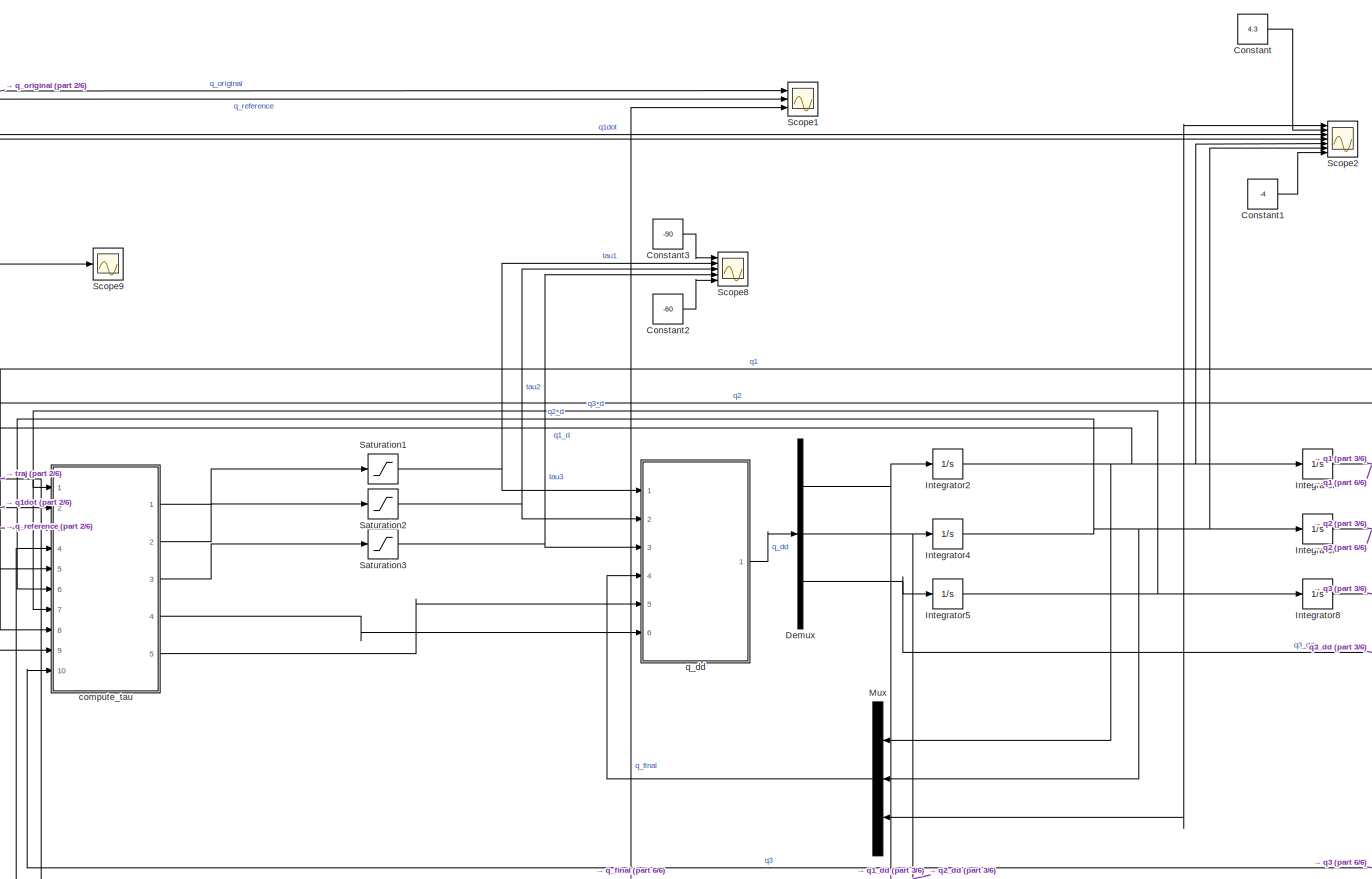
[diagram: root canvas - part 1/6, central region]
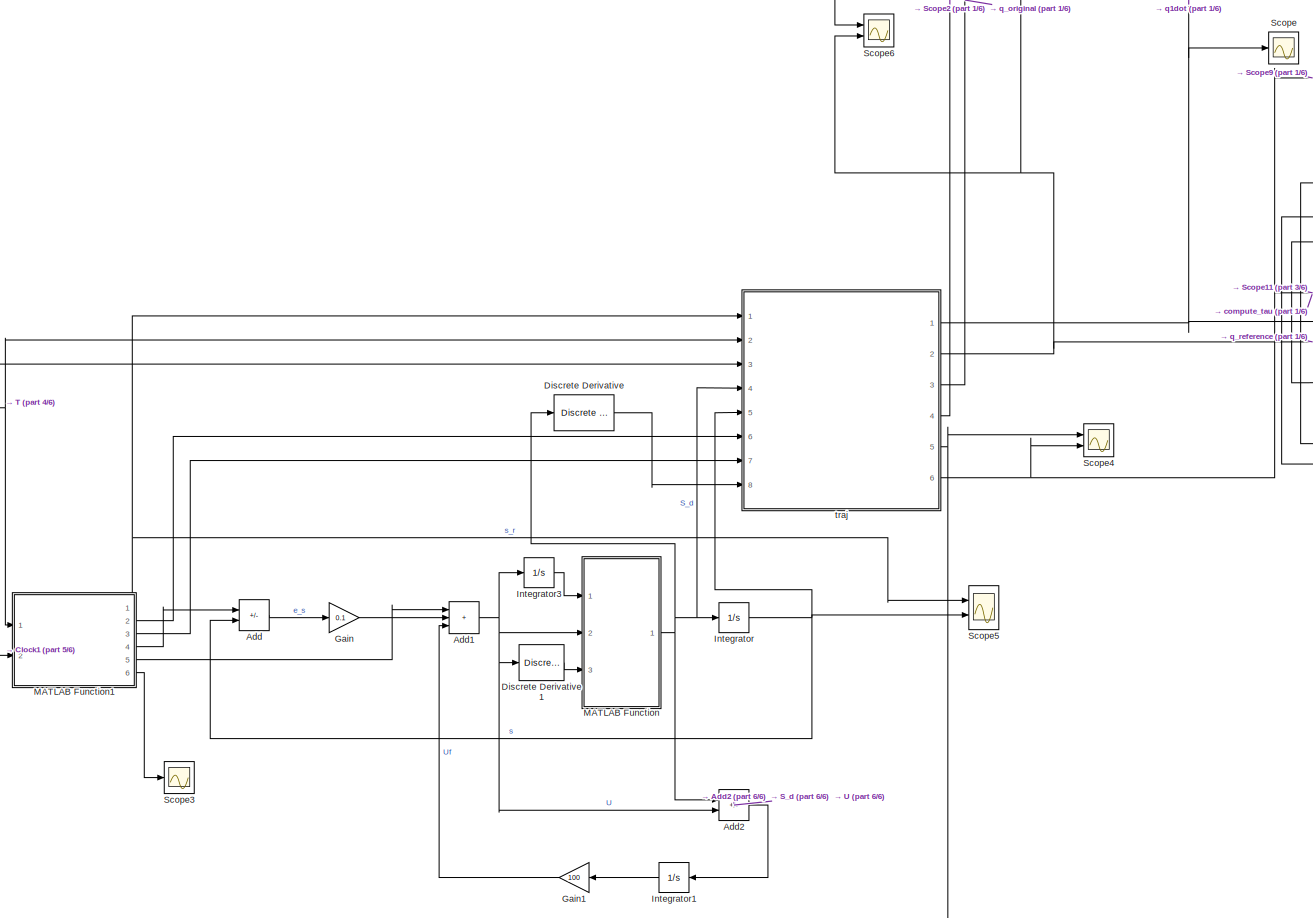
[diagram: root canvas - part 2/6, left side, full height]
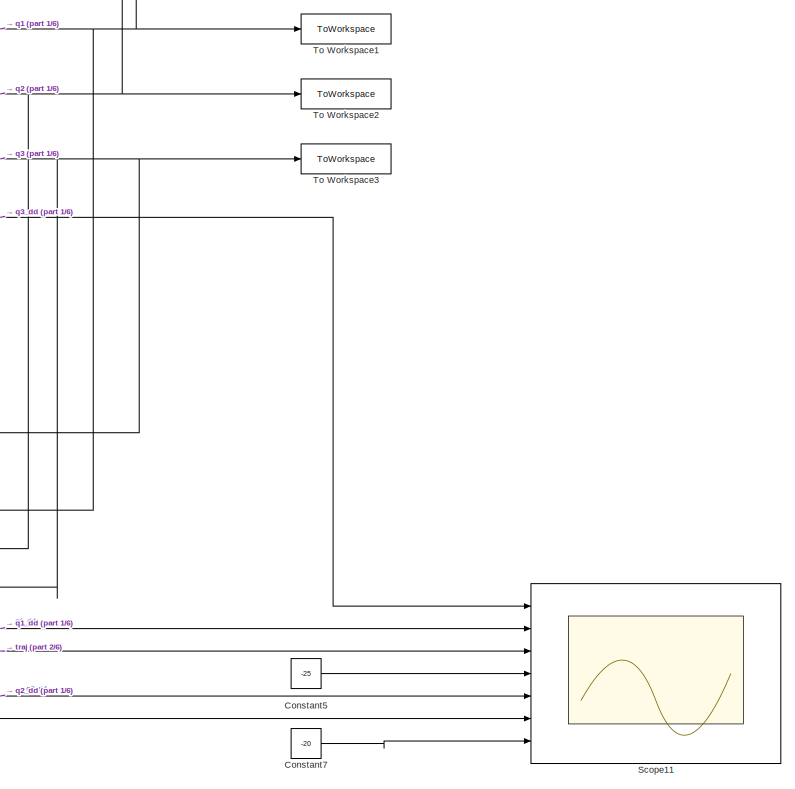
[diagram: root canvas - part 3/6, bottom right region]
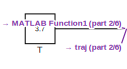
[diagram: root canvas - part 4/6, middle left region]
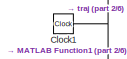
[diagram: root canvas - part 5/6, middle left region]
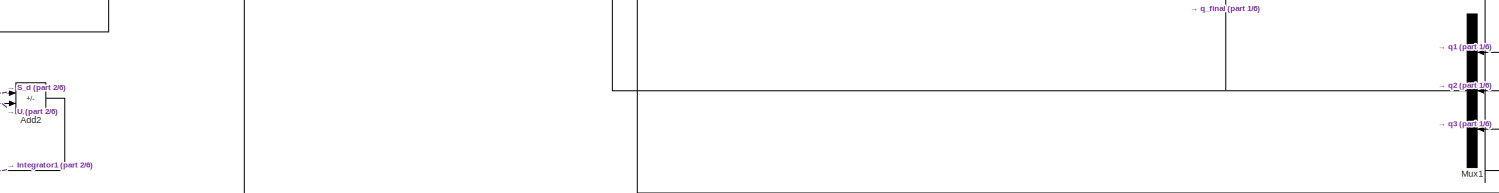
[diagram: root canvas - part 6/6, bottom center region]
MODEL slx_90f515494d0a
KIND model
CONFIG AbsTol = auto
CONFIG EnableMultiTasking = off
CONFIG FixedStep = auto
CONFIG MaxStep = auto
CONFIG MinStep = auto
CONFIG RelTol = 1e-5
CONFIG SampleTimeConstraint = Unconstrained
CONFIG SolverName = VariableStepAuto
CONFIG StartTime = 0.0
CONFIG StopTime = 3.7
BLOCK [Sum] Add
  IconShape = rectangular
  Inputs = +-
  Ports = [2, 1]
BLOCK [Sum] Add1
  IconShape = rectangular
  Inputs = +++
  Ports = [3, 1]
BLOCK [Sum] Add2
  IconShape = rectangular
  Inputs = +-
  Ports = [2, 1]
BLOCK [Clock] Clock1
BLOCK [Constant] Constant
  Value = 4.3
BLOCK [Constant] Constant1
  Value = -4
BLOCK [Constant] Constant2
  Value = -60
BLOCK [Constant] Constant3
  Value = -90
BLOCK [Constant] Constant5
  Value = -25
BLOCK [Constant] Constant7
  Value = -20
BLOCK [Demux] Demux
  Outputs = 3
  Ports = [1, 3]
BLOCK [Reference] Discrete Derivative  REF=simulink/Discrete/Discrete Derivative
  Ports = [1, 1]
  SourceBlock = simulink/Discrete/Discrete Derivative
  SourceProductBaseCode = SL
  SourceType = Discrete Derivative
BLOCK [Reference] Discrete Derivative1  REF=simulink/Discrete/Discrete Derivative
  Ports = [1, 1]
  SourceBlock = simulink/Discrete/Discrete Derivative
  SourceProductBaseCode = SL
  SourceType = Discrete Derivative
BLOCK [Gain] Gain
  Gain = 0.1
BLOCK [Gain] Gain1
  Gain = 100
BLOCK [Integrator] Integrator
  Ports = [1, 1]
BLOCK [Integrator] Integrator1
  Ports = [1, 1]
BLOCK [Integrator] Integrator2
  Ports = [1, 1]
BLOCK [Integrator] Integrator3
  Ports = [1, 1]
BLOCK [Integrator] Integrator4
  Ports = [1, 1]
BLOCK [Integrator] Integrator5
  Ports = [1, 1]
BLOCK [Integrator] Integrator6
  InitialCondition = 1.7610
  Ports = [1, 1]
BLOCK [Integrator] Integrator7
  InitialCondition = -1.9512
  Ports = [1, 1]
BLOCK [Integrator] Integrator8
  InitialCondition = 0.9756
  Ports = [1, 1]
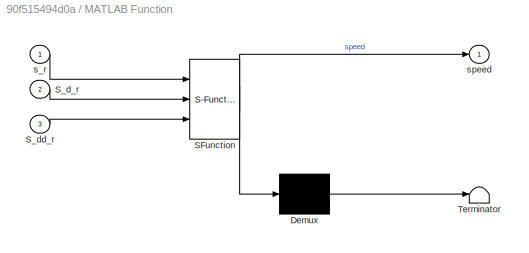
BLOCK [SubSystem] MATLAB Function
  ErrorFcn = Stateflow.Translate.translate
  PermitHierarchicalResolution = ExplicitOnly
  Ports = [3, 1]
  RequestExecContextInheritance = off
  SFBlockType = MATLAB Function
  TreatAsAtomicUnit = on
BLOCK [Demux] MATLAB Function/ Demux 
  Outputs = 1
  Ports = [1, 1]
BLOCK [S-Function] MATLAB Function/ SFunction 
  EnableBusSupport = on
  FunctionName = sf_sfun
  PortCounts = [3 2]
  Ports = [3, 2]
  SFcnIsStateOwnerBlock = off
  SFunctionDeploymentMode = off
  Tag = Stateflow S-Function 5
BLOCK [Terminator] MATLAB Function/ Terminator 
BLOCK [Inport] MATLAB Function/S_d_r
  Port = 2
BLOCK [Inport] MATLAB Function/S_dd_r
  Port = 3
BLOCK [Inport] MATLAB Function/s_r
BLOCK [Outport] MATLAB Function/speed
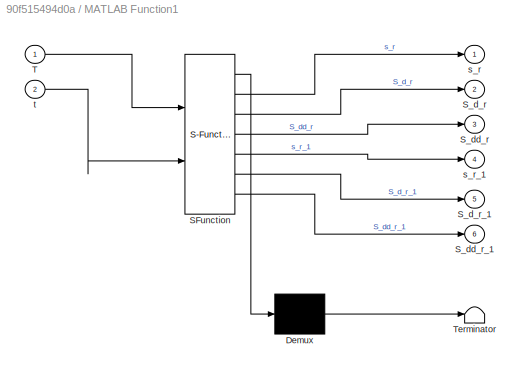
BLOCK [SubSystem] MATLAB Function1
  ErrorFcn = Stateflow.Translate.translate
  PermitHierarchicalResolution = ExplicitOnly
  Ports = [2, 6]
  RequestExecContextInheritance = off
  SFBlockType = MATLAB Function
  TreatAsAtomicUnit = on
BLOCK [Demux] MATLAB Function1/ Demux 
  Outputs = 1
  Ports = [1, 1]
BLOCK [S-Function] MATLAB Function1/ SFunction 
  EnableBusSupport = on
  FunctionName = sf_sfun
  PortCounts = [2 7]
  Ports = [2, 7]
  SFcnIsStateOwnerBlock = off
  SFunctionDeploymentMode = off
  Tag = Stateflow S-Function 3
BLOCK [Terminator] MATLAB Function1/ Terminator 
BLOCK [Outport] MATLAB Function1/S_d_r
  Port = 2
BLOCK [Outport] MATLAB Function1/S_d_r_1
  Port = 5
BLOCK [Outport] MATLAB Function1/S_dd_r
  Port = 3
BLOCK [Outport] MATLAB Function1/S_dd_r_1
  Port = 6
BLOCK [Inport] MATLAB Function1/T
BLOCK [Outport] MATLAB Function1/s_r
BLOCK [Outport] MATLAB Function1/s_r_1
  Port = 4
BLOCK [Inport] MATLAB Function1/t
  Port = 2
BLOCK [Mux] Mux
  DisplayOption = bar
  Inputs = 3
  NameLocation = top
  Ports = [3, 1]
BLOCK [Mux] Mux1
  DisplayOption = bar
  Inputs = 3
  NameLocation = top
  Ports = [3, 1]
BLOCK [Saturate] Saturation1
  LinearizeAsGain = off
  LowerLimit = -90
  UpperLimit = 90
  ZeroCross = off
BLOCK [Saturate] Saturation2
  LinearizeAsGain = off
  LowerLimit = -60
  UpperLimit = 60
  ZeroCross = off
BLOCK [Saturate] Saturation3
  LinearizeAsGain = off
  LowerLimit = -15
  UpperLimit = 15
  ZeroCross = off
BLOCK [Scope] Scope
  Floating = off
  NumInputPorts = 1
  Ports = [1]
  ScopeSpecificationString = Simulink.scopes.TimeScopeBlockCfg('CurrentConfiguration', extmgr.ConfigurationSet(extmgr.Configuration('Core','General UI',true),extmgr.Configuration('Core','Source UI',true),extmgr.Configuration('Sources','WiredSimulink',true,'DataLoggingVariableName','ScopeData1'),extmgr.Configuration('Visuals','Time Domain',true,'SerializedDisplays',{struct('MinYLimReal','-5.03718','MaxYLimReal','5.32977','YLab...<+1415ch>
BLOCK [Scope] Scope1
  Floating = off
  NumInputPorts = 3
  Ports = [3]
  ScopeSpecificationString = Simulink.scopes.TimeScopeBlockCfg('CurrentConfiguration', extmgr.ConfigurationSet(extmgr.Configuration('Core','General UI',true,'FigureColor',[1 1 1]),extmgr.Configuration('Core','Source UI',true),extmgr.Configuration('Sources','WiredSimulink',true,'DataLoggingVariableName','ScopeData2'),extmgr.Configuration('Visuals','Time Domain',true,'SerializedDisplays',{struct('MinYLimReal','-3.54984','MaxYLi...<+2529ch>
BLOCK [Scope] Scope11
  Floating = off
  NumInputPorts = 7
  Ports = [7]
  ScopeSpecificationString = Simulink.scopes.TimeScopeBlockCfg('CurrentConfiguration', extmgr.ConfigurationSet(extmgr.Configuration('Core','General UI',true,'FigureColor',[1 1 1]),extmgr.Configuration('Core','Source UI',true),extmgr.Configuration('Sources','WiredSimulink',true,'DataLoggingVariableName','ScopeData2'),extmgr.Configuration('Visuals','Time Domain',true,'SerializedDisplays',{struct('MinYLimReal','-30.27035','MaxYL...<+3435ch>
BLOCK [Scope] Scope2
  Floating = off
  NumInputPorts = 7
  Ports = [7]
  ScopeSpecificationString = Simulink.scopes.TimeScopeBlockCfg('CurrentConfiguration', extmgr.ConfigurationSet(extmgr.Configuration('Core','General UI',true,'FigureColor',[1 1 1]),extmgr.Configuration('Core','Source UI',true),extmgr.Configuration('Sources','WiredSimulink',true,'DataLoggingVariableName','ScopeData3'),extmgr.Configuration('Visuals','Time Domain',true,'SerializedDisplays',{struct('MinYLimReal','-4.47931','MaxYLi...<+2866ch>
BLOCK [Scope] Scope3
  Floating = off
  NumInputPorts = 1
  Ports = [1]
  ScopeSpecificationString = Simulink.scopes.TimeScopeBlockCfg('CurrentConfiguration', extmgr.ConfigurationSet(extmgr.Configuration('Core','General UI',true),extmgr.Configuration('Core','Source UI',true),extmgr.Configuration('Sources','WiredSimulink',true,'DataLoggingVariableName','ScopeData1'),extmgr.Configuration('Visuals','Time Domain',true),extmgr.Configuration('Tools','Plot Navigation',true),extmgr.Configuration('Tools',...<+40ch>
BLOCK [Scope] Scope4
  Floating = off
  NumInputPorts = 2
  Ports = [2]
  ScopeSpecificationString = Simulink.scopes.TimeScopeBlockCfg('CurrentConfiguration', extmgr.ConfigurationSet(extmgr.Configuration('Core','General UI',true),extmgr.Configuration('Core','Source UI',true),extmgr.Configuration('Sources','WiredSimulink',true,'DataLoggingVariableName','ScopeData1'),extmgr.Configuration('Visuals','Time Domain',true,'SerializedDisplays',{struct('MinYLimReal','-29.61261','MaxYLimReal','22.36008','YL...<+1583ch>
BLOCK [Scope] Scope5
  Floating = off
  NumInputPorts = 2
  Ports = [2]
  ScopeSpecificationString = Simulink.scopes.TimeScopeBlockCfg('CurrentConfiguration', extmgr.ConfigurationSet(extmgr.Configuration('Core','General UI',true),extmgr.Configuration('Core','Source UI',true),extmgr.Configuration('Sources','WiredSimulink',true,'DataLoggingVariableName','ScopeData6'),extmgr.Configuration('Visuals','Time Domain',true,'SerializedDisplays',{struct('MinYLimReal','-0.12502','MaxYLimReal','1.12522','YLab...<+1442ch>
BLOCK [Scope] Scope6
  Floating = off
  NumInputPorts = 2
  Ports = [2]
  ScopeSpecificationString = Simulink.scopes.TimeScopeBlockCfg('CurrentConfiguration', extmgr.ConfigurationSet(extmgr.Configuration('Core','General UI',true),extmgr.Configuration('Core','Source UI',true),extmgr.Configuration('Sources','WiredSimulink',true,'DataLoggingVariableName','ScopeData7'),extmgr.Configuration('Visuals','Time Domain',true,'SerializedDisplays',{struct('MinYLimReal','-3.53234','MaxYLimReal','3.8452','YLabe...<+1613ch>
BLOCK [Scope] Scope8
  Floating = off
  NumInputPorts = 5
  Ports = [5]
  ScopeSpecificationString = Simulink.scopes.TimeScopeBlockCfg('CurrentConfiguration', extmgr.ConfigurationSet(extmgr.Configuration('Core','General UI',true,'FigureColor',[1 1 1]),extmgr.Configuration('Core','Source UI',true),extmgr.Configuration('Sources','WiredSimulink',true,'DataLoggingVariableName','ScopeData9'),extmgr.Configuration('Visuals','Time Domain',true,'SerializedDisplays',{struct('MinYLimReal','-109.99896','MaxY...<+1818ch>
BLOCK [Scope] Scope9
  Floating = off
  NumInputPorts = 1
  Ports = [1]
  ScopeSpecificationString = Simulink.scopes.TimeScopeBlockCfg('CurrentConfiguration', extmgr.ConfigurationSet(extmgr.Configuration('Core','General UI',true),extmgr.Configuration('Core','Source UI',true),extmgr.Configuration('Sources','WiredSimulink',true),extmgr.Configuration('Visuals','Time Domain',true,'SerializedDisplays',{struct('MinYLimReal','-24.95066','MaxYLimReal','18.4343','YLabelReal','','MinYLimMag','0.00000','Max...<+1437ch>
BLOCK [Constant] T
  Value = 3.7
BLOCK [ToWorkspace] To Workspace1
  FixptAsFi = on
  MaxDataPoints = inf
  Ports = [1]
  SampleTime = -1
  VariableName = q1
BLOCK [ToWorkspace] To Workspace2
  FixptAsFi = on
  MaxDataPoints = inf
  Ports = [1]
  SampleTime = -1
  VariableName = q2
BLOCK [ToWorkspace] To Workspace3
  FixptAsFi = on
  MaxDataPoints = inf
  Ports = [1]
  SampleTime = -1
  VariableName = q3
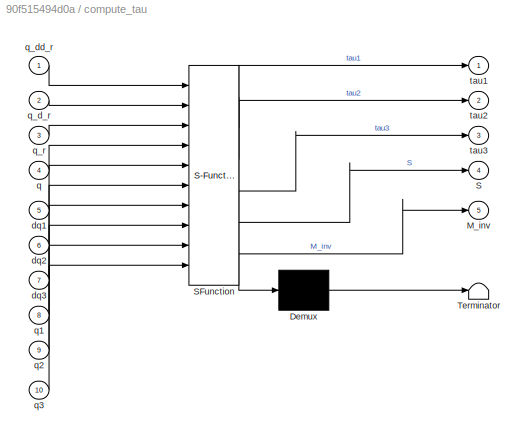
BLOCK [SubSystem] compute_tau
  ErrorFcn = Stateflow.Translate.translate
  PermitHierarchicalResolution = ExplicitOnly
  Ports = [10, 5]
  RequestExecContextInheritance = off
  SFBlockType = MATLAB Function
  TreatAsAtomicUnit = on
BLOCK [Demux] compute_tau/ Demux 
  Outputs = 1
  Ports = [1, 1]
BLOCK [S-Function] compute_tau/ SFunction 
  EnableBusSupport = on
  FunctionName = sf_sfun
  PortCounts = [10 6]
  Ports = [10, 6]
  SFcnIsStateOwnerBlock = off
  SFunctionDeploymentMode = off
  Tag = Stateflow S-Function 2
BLOCK [Terminator] compute_tau/ Terminator 
BLOCK [Outport] compute_tau/M_inv
  Port = 5
BLOCK [Outport] compute_tau/S
  Port = 4
BLOCK [Inport] compute_tau/dq1
  Port = 5
BLOCK [Inport] compute_tau/dq2
  Port = 6
BLOCK [Inport] compute_tau/dq3
  Port = 7
BLOCK [Inport] compute_tau/q
  Port = 4
BLOCK [Inport] compute_tau/q1
  Port = 8
BLOCK [Inport] compute_tau/q2
  Port = 9
BLOCK [Inport] compute_tau/q3
  Port = 10
BLOCK [Inport] compute_tau/q_d_r
  Port = 2
BLOCK [Inport] compute_tau/q_dd_r
BLOCK [Inport] compute_tau/q_r
  Port = 3
BLOCK [Outport] compute_tau/tau1
BLOCK [Outport] compute_tau/tau2
  Port = 2
BLOCK [Outport] compute_tau/tau3
  Port = 3
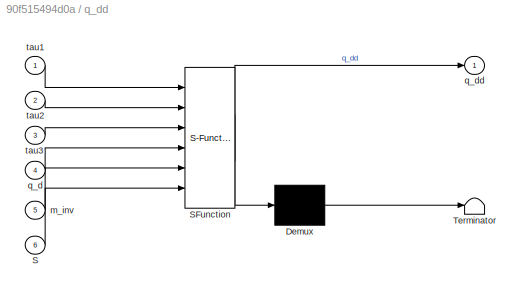
BLOCK [SubSystem] q_dd
  ErrorFcn = Stateflow.Translate.translate
  PermitHierarchicalResolution = ExplicitOnly
  Ports = [6, 1]
  RequestExecContextInheritance = off
  SFBlockType = MATLAB Function
  TreatAsAtomicUnit = on
BLOCK [Demux] q_dd/ Demux 
  Outputs = 1
  Ports = [1, 1]
BLOCK [S-Function] q_dd/ SFunction 
  EnableBusSupport = on
  FunctionName = sf_sfun
  PortCounts = [6 2]
  Ports = [6, 2]
  SFcnIsStateOwnerBlock = off
  SFunctionDeploymentMode = off
  Tag = Stateflow S-Function 1
BLOCK [Terminator] q_dd/ Terminator 
BLOCK [Inport] q_dd/S
  Port = 6
BLOCK [Inport] q_dd/m_inv
  Port = 5
BLOCK [Inport] q_dd/q_d
  Port = 4
BLOCK [Outport] q_dd/q_dd
BLOCK [Inport] q_dd/tau1
BLOCK [Inport] q_dd/tau2
  Port = 2
BLOCK [Inport] q_dd/tau3
  Port = 3
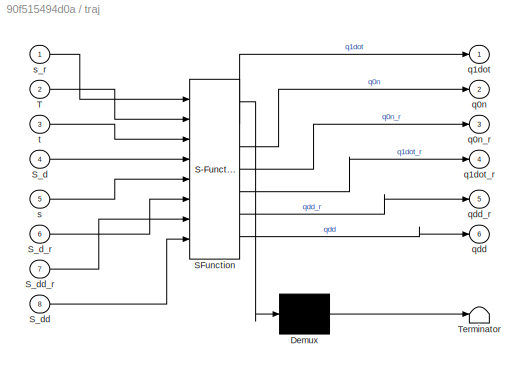
BLOCK [SubSystem] traj
  ErrorFcn = Stateflow.Translate.translate
  PermitHierarchicalResolution = ExplicitOnly
  Ports = [8, 6]
  RequestExecContextInheritance = off
  SFBlockType = MATLAB Function
  TreatAsAtomicUnit = on
BLOCK [Demux] traj/ Demux 
  Outputs = 1
  Ports = [1, 1]
BLOCK [S-Function] traj/ SFunction 
  EnableBusSupport = on
  FunctionName = sf_sfun
  PortCounts = [8 7]
  Ports = [8, 7]
  SFcnIsStateOwnerBlock = off
  SFunctionDeploymentMode = off
  Tag = Stateflow S-Function 4
BLOCK [Terminator] traj/ Terminator 
BLOCK [Inport] traj/S_d
  Port = 4
BLOCK [Inport] traj/S_d_r
  Port = 6
BLOCK [Inport] traj/S_dd
  Port = 8
BLOCK [Inport] traj/S_dd_r
  Port = 7
BLOCK [Inport] traj/T
  Port = 2
BLOCK [Outport] traj/q0n
  Port = 2
BLOCK [Outport] traj/q0n_r
  Port = 3
BLOCK [Outport] traj/q1dot
BLOCK [Outport] traj/q1dot_r
  Port = 4
BLOCK [Outport] traj/qdd
  Port = 6
BLOCK [Outport] traj/qdd_r
  Port = 5
BLOCK [Inport] traj/s
  Port = 5
BLOCK [Inport] traj/s_r
BLOCK [Inport] traj/t
  Port = 3
NET Add1:1 -> Add2:2, Discrete Derivative1:1, Integrator3:1, MATLAB Function:2
LINE Add2:1 -> Integrator1:1
LINE Add:1 -> Gain:1
NET Clock1:1 -> MATLAB Function1:2, traj:3
LINE Constant1:1 -> Scope2:7
LINE Constant2:1 -> Scope8:5
LINE Constant3:1 -> Scope8:1
LINE Constant5:1 -> Scope11:4
LINE Constant7:1 -> Scope11:7
LINE Constant:1 -> Scope2:2
NET Demux:1 -> Integrator2:1, Scope11:2
NET Demux:2 -> Integrator4:1, Scope11:5
NET Demux:3 -> Integrator5:1, Scope11:1
LINE Discrete Derivative1:1 -> MATLAB Function:3
LINE Discrete Derivative:1 -> traj:8
LINE Gain1:1 -> Add1:3
LINE Gain:1 -> Add1:2
LINE Integrator1:1 -> Gain1:1
NET Integrator2:1 -> Integrator6:1, Mux:1, Scope2:5, compute_tau:5
LINE Integrator3:1 -> MATLAB Function:1
NET Integrator4:1 -> Integrator7:1, Mux:2, Scope2:6, compute_tau:6
NET Integrator5:1 -> Integrator8:1, Mux:3, Scope2:1, compute_tau:7
NET Integrator6:1 -> Mux1:1, To Workspace1:1, compute_tau:8
NET Integrator7:1 -> Mux1:2, To Workspace2:1, compute_tau:9
NET Integrator8:1 -> Mux1:3, To Workspace3:1, compute_tau:10
NET Integrator:1 -> Add:2, Scope5:2, traj:5
NET MATLAB Function1:1 -> Scope5:1, traj:1
LINE MATLAB Function1:2 -> traj:6
LINE MATLAB Function1:3 -> traj:7
LINE MATLAB Function1:4 -> Add:1
LINE MATLAB Function1:5 -> Add1:1
LINE MATLAB Function1:6 -> Scope3:1
NET MATLAB Function:1 -> Add2:1, Discrete Derivative:1, Integrator:1, traj:4
NET Mux1:1 -> Scope1:3, compute_tau:4
LINE Mux:1 -> q_dd:4
NET Saturation1:1 -> Scope8:2, q_dd:1
NET Saturation2:1 -> Scope8:3, q_dd:2
NET Saturation3:1 -> Scope8:4, q_dd:3
NET T:1 -> MATLAB Function1:1, traj:2
LINE compute_tau:1 -> Saturation1:1
LINE compute_tau:2 -> Saturation2:1
LINE compute_tau:3 -> Saturation3:1
LINE compute_tau:4 -> q_dd:6
LINE compute_tau:5 -> q_dd:5
LINE q_dd:1 -> Demux:1
NET traj:1 -> Scope2:3, Scope:1, compute_tau:2
NET traj:2 -> Scope1:2, Scope6:2, compute_tau:3
NET traj:3 -> Scope1:1, Scope6:1
LINE traj:4 -> Scope2:4
NET traj:5 -> Scope11:6, Scope4:1
NET traj:6 -> Scope11:3, Scope4:2, Scope9:1, compute_tau:1
note: NET lines group one-source signal fan-out (src -> all destinations, sorted); 1:1 wires keep LINE
CHART q_dd states=1 transitions=1
  STATE_LABEL 'eML_blk_kernel()'
  STATE_LABEL 'SCRIPT:\nfunction q_dd = compute_q_dd(tau1,tau2,tau3,q_d,m_inv,S)\n\ntau = [tau1;\n       tau2;\n       tau3];\nq_dd = m_inv*(tau - (S*q_d));\n\n'
CHART compute_tau states=1 transitions=1
  STATE_LABEL 'eML_blk_kernel()'
  STATE_LABEL 'SCRIPT:\nfunction [tau1,tau2,tau3,S,M_inv] = compute_tau(q_dd_r, q_d_r, q_r, q,dq1,dq2,dq3,q1,q2,q3)\n\n% M(q)q_dd_r + S(q,q_d)q_d_r + Kp(q_r - q) + Kd (q_d_r - q_d)\n\n% \n% Kp = diag([70,70,70]);\n% \n% Kd= diag([300,300,300]);\n% \n%NEW GAIN TO STABILIZE ACCELERATION\nKp = diag([0.1,0.1,0.1]);\n\nKd = diag([10,10,10]);\n\n%%q\n\n% q1=q_r(1);\n% q2=q_r(2);\n% q3=q_r(3);\n% %%dq\n% dq1=q_d_r(1);\n% dq2=q_d_r(2);\n% dq3...<+1949ch>'
CHART MATLAB Function1 states=1 transitions=1
  STATE_LABEL 'eML_blk_kernel()'
  STATE_LABEL 'SCRIPT:\nfunction [s_r, S_d_r, S_dd_r,s_r_1, S_d_r_1, S_dd_r_1] = timing_law(T, t)\n\ntau_t=t/T;\n%s_r = -2*tau_t^3 + 3*tau_t^2;\ns_r = 10*tau_t^3 - 15*tau_t^4 + 6*tau_t^5;\nS_d_r = (30*t^2)/T^3 - (60*t^3)/T^4 + (30*t^4)/T^5;\nS_dd_r=(60*t)/T^3 - (180*t^2)/T^4 + (120*t^3)/T^5;\nt_1 = t +0.0001;\ntau_t_1 = t_1/T;\ns_r_1 = 10*tau_t_1^3 - 15*tau_t_1^4 + 6*tau_t_1^5;\nS_d_r_1 = (30*t_1^2)/T^3 - (60*t_1^3)/T^4 + ...<+74ch>'
CHART traj states=1 transitions=1
  STATE_LABEL 'eML_blk_kernel()'
  STATE_LABEL 'SCRIPT:\n%function [q1dot,q1dot_r,q1,q2,q3,q0n_r,q0n] = trajectory(s_r, T, t, S_d, s)\nfunction [q1dot,q0n,q0n_r,q1dot_r, qdd_r, qdd] = trajectory(s_r, T, t, S_d, s, S_d_r, S_dd_r, S_dd)\n\n%r = 0.5\n%c = [0;0]\n\n%q1=atan2(c(1)+r*sin(2*pi*s) ,c(2)+r*cos(2*pi*s))\n\n%q_r=atan2(c(1)+r*sin(2*pi*s_r) ,c(2)+r*cos(2*pi*s_r))\n%Links length\nl1 = 1; l2 =1; l3 = 1;\n\n%Trajectory\nR = 0.5; x0 = 1; y0 = 1.5;\n\np_s = [x0...<+3608ch>'
CHART MATLAB Function states=1 transitions=1
  STATE_LABEL 'eML_blk_kernel()'
  STATE_LABEL "SCRIPT:\nfunction speed = trajectory(s_r,S_d_r,S_dd_r)\n\n%Links length\nl1 = 1; l2 =1; l3 = 1;\n\n%Trajectory\nR = 0.5; x0 = 1; y0 = 1.5;\n\n%%% REFERENCE\np_s_r = [x0 + R*cos(2*pi*s_r);\n         y0 + R*sin(2*pi*s_r);\n         pi/4];\n\n\n%Velocity of the trajectory\n\n\n%%pdot = R'*s'(t)\n\nR1_s_r=[-2*pi*R*(sin(2*pi*s_r));\n        2*pi*R*(cos(2*pi*s_r));\n       0];\n\n\n\n%%% REFERENCE\n\n%%%POLYNOMIAL OF DEGREE 5 --- ...<+3608ch>"
CHART  states=0 transitions=0
CHART  states=0 transitions=0
CHART  states=0 transitions=0
CHART  states=0 transitions=0
CHART  states=0 transitions=0
